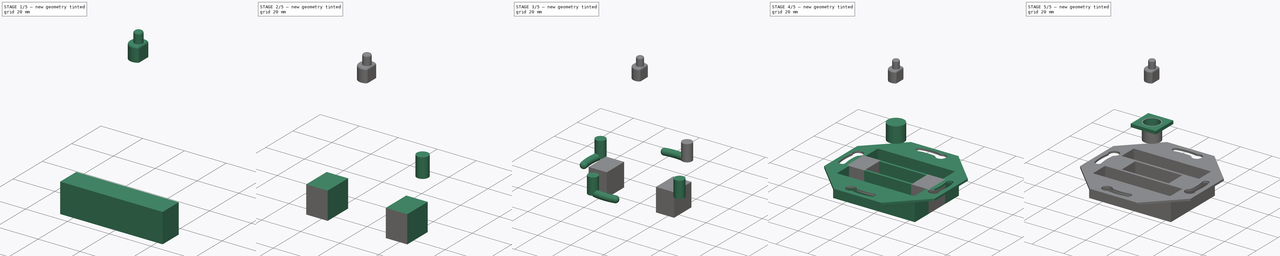
[diagram: build sequence overview — one tinted view per stage of 5, left to right]
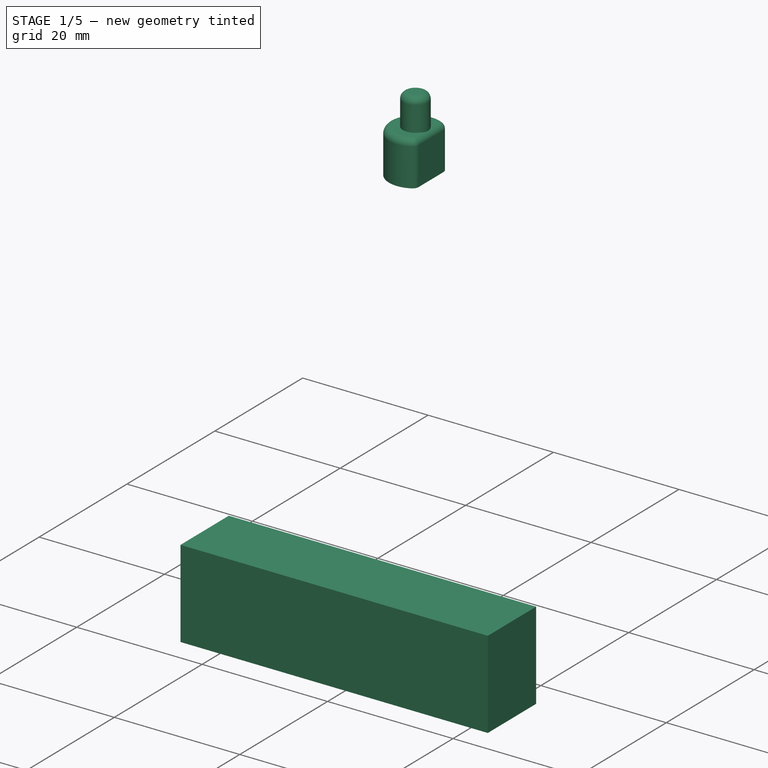
[diagram: stage 1 of 5 — iso view after this stage's code; geometry added in this stage tinted green]
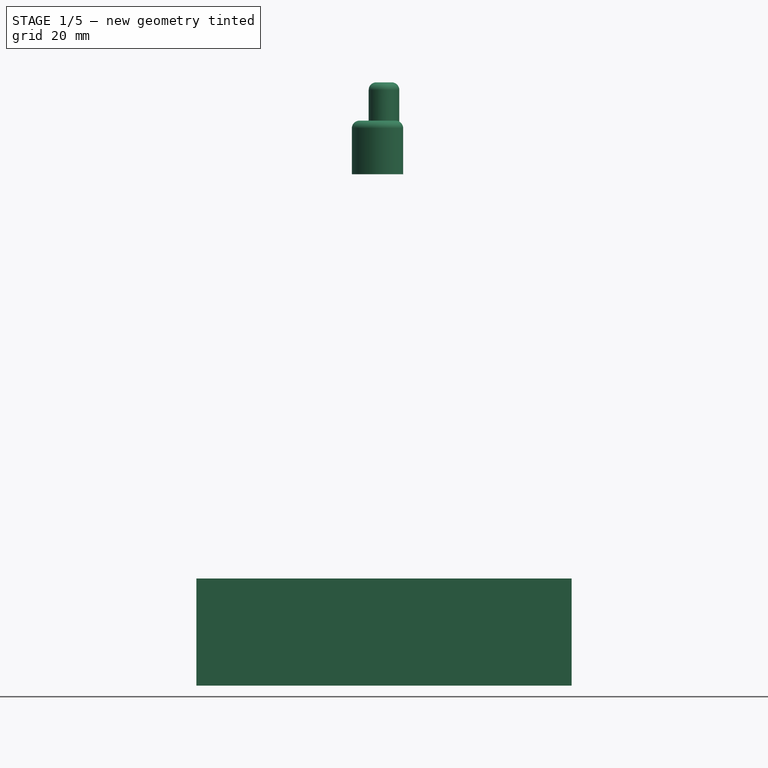
[diagram: stage 1 of 5 — front view after this stage's code; geometry added in this stage tinted green]
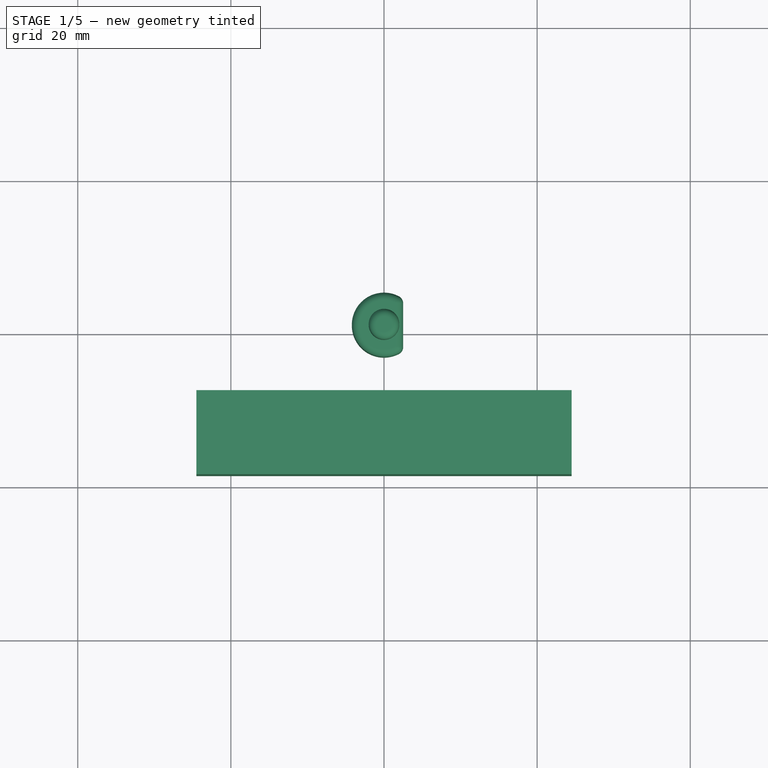
[diagram: stage 1 of 5 — top view after this stage's code; geometry added in this stage tinted green]
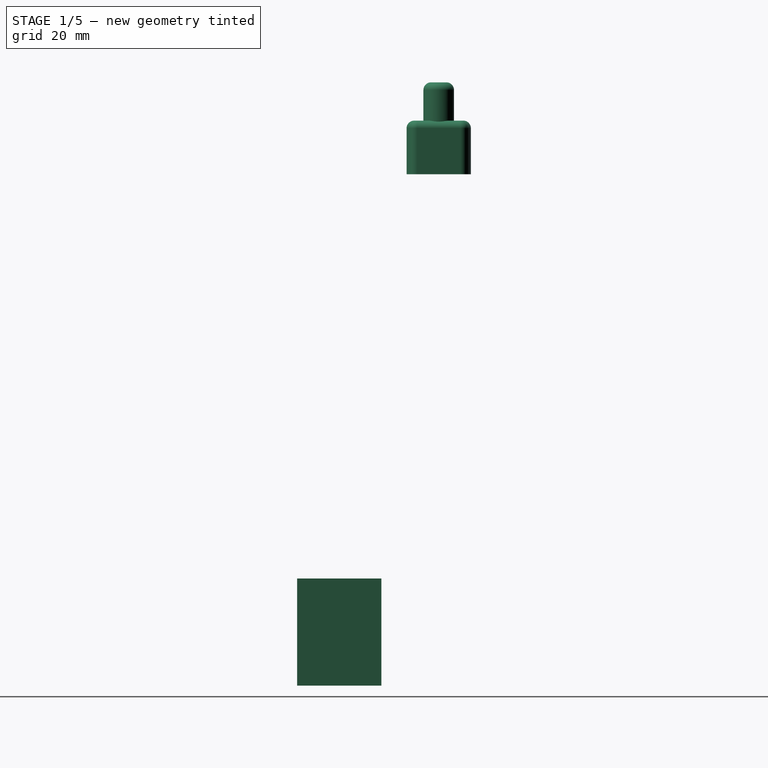
[diagram: stage 1 of 5 — right view after this stage's code; geometry added in this stage tinted green]
FCSTD DOCUMENT  (FreeCAD 0.16R6706 (Git))
Label: HB-RC-3-ENC
License: All rights reserved
LicenseURL: http://en.wikipedia.org/wiki/All_rights_reserved
objects: Part::Cylinder×9, Part::MultiFuse×6, Part::FeaturePython×5, Part::Box×5, Part::Cut×5, Sketcher::SketchObject×2, PartDesign::Pad×2, Part::Fillet×2, Part::Chamfer×2, Part::Torus×1, Part::Feature×1, Part::Thickness×1
note: 43 computed .brp shape members not serialized (recipe doc carries the construction recipe); baked Part::Feature solids carry a one-line shape summary decoded from their .brp

FEATURE [Sketcher::SketchObject] Sketch
  sketch-geometry (8):
    g0: LineSegment StartX=-15 StartY=35 StartZ=0 EndX=15 EndY=35 EndZ=0
    g1: LineSegment StartX=35 StartY=15 StartZ=0 EndX=35 EndY=-15 EndZ=0
    g2: LineSegment StartX=15 StartY=-35 StartZ=0 EndX=-15 EndY=-35 EndZ=0
    g3: LineSegment StartX=-35 StartY=15 StartZ=0 EndX=-35 EndY=-15 EndZ=0
    g4: LineSegment StartX=-35 StartY=15 StartZ=0 EndX=-15 EndY=35 EndZ=0
    g5: LineSegment StartX=15 StartY=35 StartZ=0 EndX=35 EndY=15 EndZ=0
    g6: LineSegment StartX=35 StartY=-15 StartZ=0 EndX=15 EndY=-35 EndZ=0
    g7: LineSegment StartX=-15 StartY=-35 StartZ=0 EndX=-35 EndY=-15 EndZ=0
  constraints (24):
    c: Horizontal(g0)
    c: Vertical(g1)
    c: Horizontal(g2)
    c: Vertical(g3)
    c: Coincident(g4,g3)
    c: Coincident(g4,g0)
    c: Coincident(g5,g0)
    c: Coincident(g5,g1)
    c: Coincident(g6,g1)
    c: Coincident(g6,g2)
    c: Coincident(g7,g2)
    c: Coincident(g7,g3)
    c: Distance(g-1,g3) = 35
    c: Distance(g-1,g1) = 35
    c: Distance(g-1,g0) = 35
    c: Distance(g-1,g2) = 35
    c: DistanceX(g0,g0) = 30
    c: Symmetric(g0,g0,g-2)
    c: DistanceX(g2,g2) = 30
    c: Symmetric(g2,g2,g-2)
    c: DistanceY(g1,g1) = 30
    c: Symmetric(g1,g1,g-1)
    c: DistanceY(g3,g3) = 30
    c: Symmetric(g3,g3,g-1)
FEATURE [PartDesign::Pad] Pad
  Length = 1.2
  Length2 = 100
  Sketch = -> Sketch
  Type = 0
FEATURE [Part::Cylinder] Cylinder007  label="AAA"
  Angle = 360
  Height = 45
  Placement = pos=(-22.5,-13,-4.3) rot=(0,1,0;1.5708rad)
  Radius = 5.5
  expr: Placement.Base.z = -Radius + Pad.Length
  expr: Placement.Base.x = -Height / 2
FEATURE [Part::Box] Box  label="BatFachInnen"
  Height = 14
  Length = 49
  Placement = pos=(-24.5,-18.5,-12.8) rot=(0,0,1;0rad)
  Width = 11
  expr: Placement.Base.z = -Height + Pad.Length
  expr: Placement.Base.y = AAA.Placement.Base.y - Width / 2
  expr: Placement.Base.x = -Length / 2
  expr: Height = AAA.Radius * 2 + 3mm
  expr: Width = AAA.Radius * 2
  expr: Length = AAA.Height + 4mm
FEATURE [Sketcher::SketchObject] Sketch001
  sketch-geometry (2):
    g0: ArcOfCircle CenterX=0 CenterY=0 CenterZ=0 NormalX=0 NormalY=0 NormalZ=1 Radius=3.2 StartAngle=4.22451 EndAngle=8.34186
    g1: LineSegment StartX=-1.5 StartY=2.82666 StartZ=0 EndX=-1.5 EndY=-2.82666 EndZ=0
  constraints (6):
    c: Coincident(g0,g-1)
    c: Coincident(g1,g0)
    c: Coincident(g1,g0)
    c: Vertical(g1)
    c: Radius(g0) = 3.2
    c: Distance(g-1,g1) = 1.5
FEATURE [PartDesign::Pad] Pad001
  Length = 6
  Length2 = 100
  Sketch = -> Sketch001
  Type = 0
FEATURE [Part::Thickness] Thickness
  Faces = -> Pad001 [Face4]
  Intersection = false
  Join = 0
  Mode = 0
  SelfIntersection = false
  Value = 1
FEATURE [Part::Cylinder] Cylinder011  label="Zylinder001"
  Angle = 360
  Height = 6
  Placement = pos=(0,0,-6) rot=(0,0,1;0rad)
  Radius = 2
  expr: Placement.Base.z = -Height
FEATURE [Part::Fillet] Fillet001
  Base = -> Cylinder011
  Edges = 1 edges r=1: [Edge3]
FEATURE [Part::MultiFuse] Fusion006  label="Adapter"
  Placement = pos=(0,0,60) rot=(0,1,0;3.14159rad)
  Shapes = -> [Thickness,Fillet001]
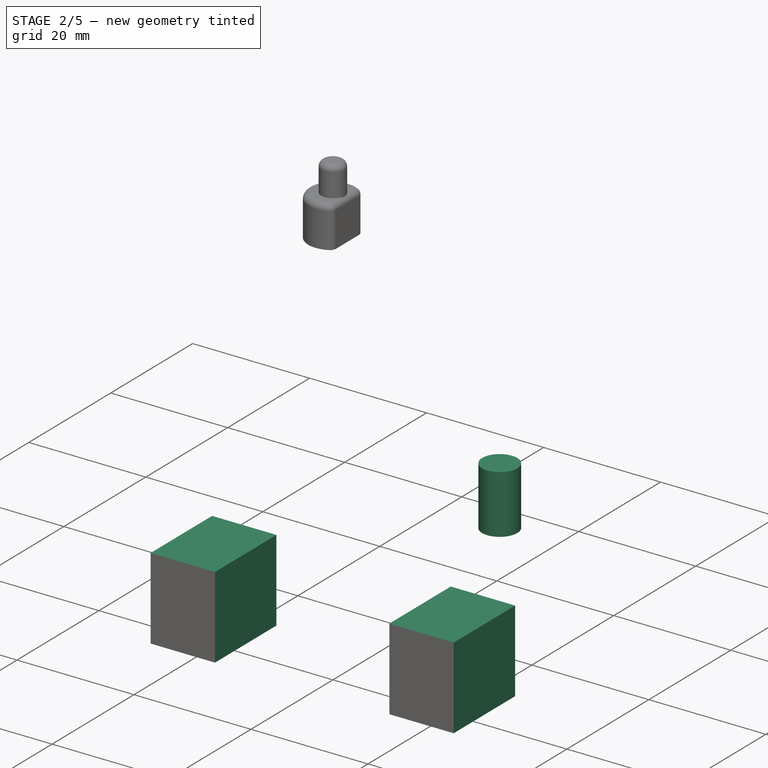
[diagram: stage 2 of 5 — iso view after this stage's code; geometry added in this stage tinted green]
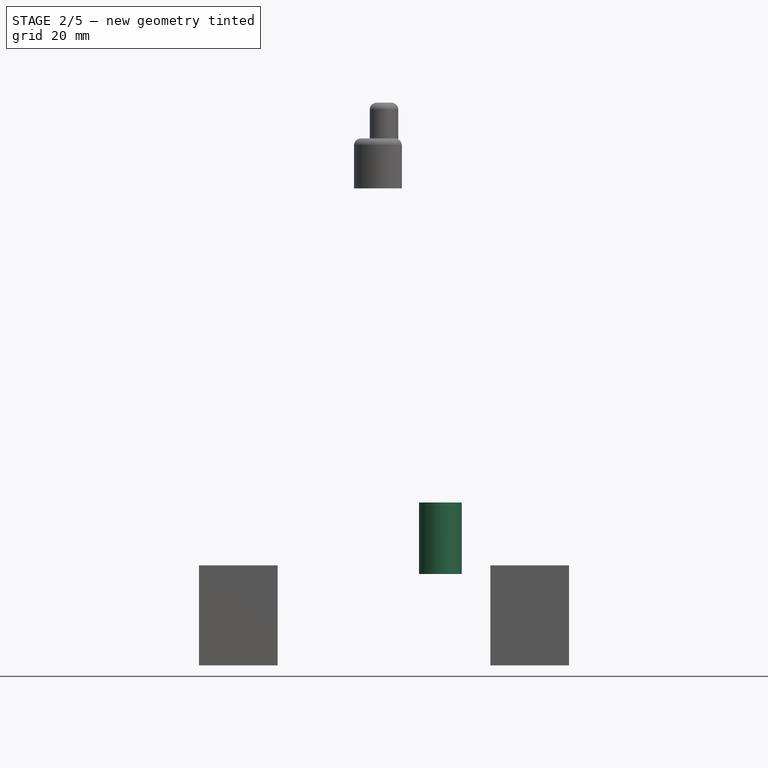
[diagram: stage 2 of 5 — front view after this stage's code; geometry added in this stage tinted green]
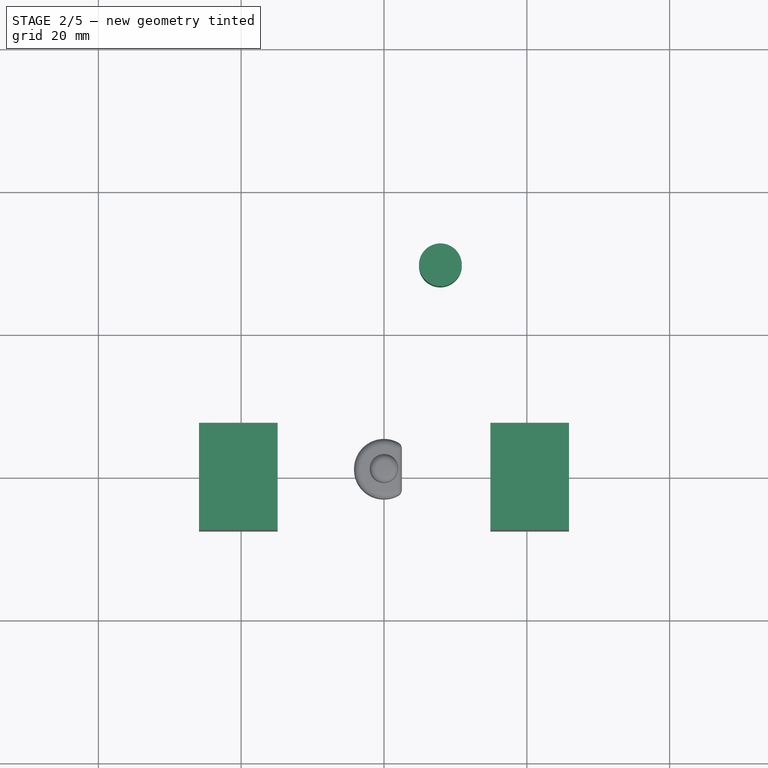
[diagram: stage 2 of 5 — top view after this stage's code; geometry added in this stage tinted green]
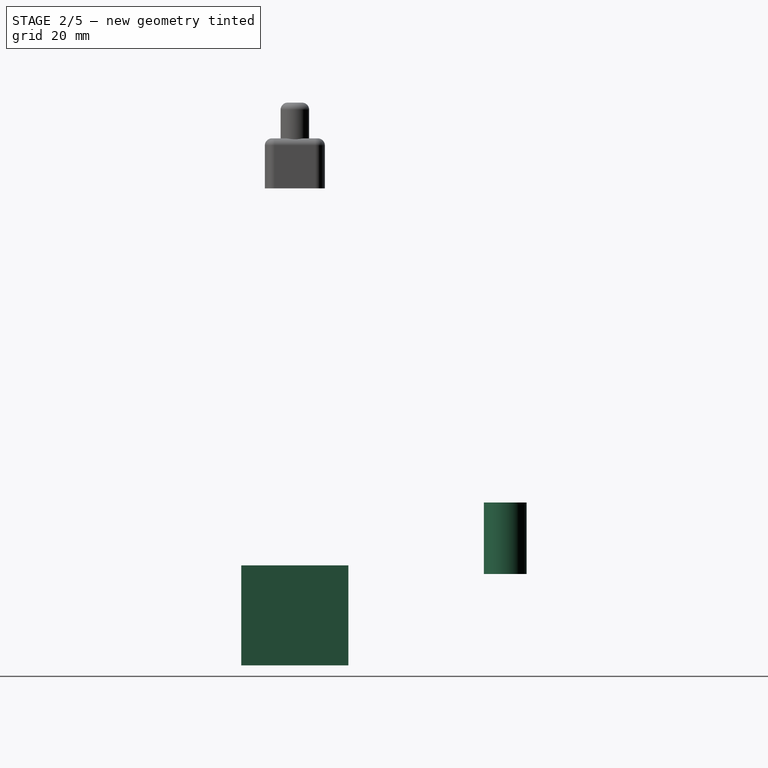
[diagram: stage 2 of 5 — right view after this stage's code; geometry added in this stage tinted green]
FEATURE [Part::Torus] Torus  label="Schlitz"
  Angle1 = -180
  Angle2 = 180
  Angle3 = 30
  Placement = pos=(0,0,0.6) rot=(0,0,-1;0.261799rad)
  Radius1 = 30.5
  Radius2 = 2
  expr: Placement.Base.z = Pad.Length / 2
FEATURE [Part::Cylinder] Cylinder  label="Loch1"
  Angle = 360
  Height = 10
  Placement = pos=(7.89398,29.4607,0) rot=(0,0,1;0rad)
  Radius = 3
  expr: Placement.Base.x = Schlitz.Radius1 * sin(Schlitz.Angle3 / 2)
  expr: Placement.Rotation.Angle = 0
  expr: Radius = Schlitz.Radius2 + 1mm
  expr: Placement.Base.y = Schlitz.Radius1 * cos(Schlitz.Angle3 / 2)
FEATURE [Part::Box] Box001  label="BatFachAussen"
  Height = 14
  Length = 51.8
  Placement = pos=(-25.9,-19.9,-12.8) rot=(0,0,1;0rad)
  Width = 13.8
  expr: Placement.Base.y = BatFachInnen.Placement.Base.y - 1.4mm
  expr: Placement.Base.z = -Height + Pad.Length
  expr: Placement.Base.x = -Length / 2
  expr: Height = BatFachInnen.Height
  expr: Width = BatFachInnen.Width + 2.8mm
  expr: Length = BatFachInnen.Length + 2.8mm
FEATURE [Part::Cut] Cut001  label="BatFach"
  Base = -> Box001
  Tool = -> Box
FEATURE [Part::FeaturePython] Array  label="BatFaecher"  # Draft array (typed FeaturePython)
  Angle = 360
  ArrayType = 0
  Axis = (0,0,1)
  Base = -> Cut001
  Center = (0,0,0)
  Fuse = false
  IntervalAxis = (0,0,0)
  IntervalX = (1,0,0)
  IntervalY = (0,26,0)
  IntervalZ = (0,0,0)
  NumberPolar = 1
  NumberX = 1
  NumberY = 2
  NumberZ = 1
  expr: IntervalY.y = BatFachAussen.Placement.Base.y * -2 - BatFachAussen.Width
FEATURE [Part::Box] Box003  label="Verbinder"
  Height = 14
  Length = 11
  Placement = pos=(-25.9,-7.5,-12.8) rot=(0,0,1;0rad)
  Width = 15
  expr: Placement.Base.z = BatFachInnen.Placement.Base.z
  expr: Placement.Base.y = -Width / 2
  expr: Placement.Base.x = BatFachAussen.Placement.Base.x
  expr: Height = BatFachInnen.Height
  expr: Width = BatFaecher.IntervalY.y * 1mm - BatFachInnen.Width
  expr: Length = BatFachInnen.Height - 3mm
FEATURE [Part::FeaturePython] Array001  label="Platinenhalter"  # Draft array (typed FeaturePython)
  Angle = 360
  ArrayType = 0
  Axis = (0,0,1)
  Base = -> Box003
  Center = (0,0,0)
  Fuse = false
  IntervalAxis = (0,0,0)
  IntervalX = (40.8,0,0)
  IntervalY = (0,0,0)
  IntervalZ = (0,0,0)
  NumberPolar = 1
  NumberX = 2
  NumberY = 1
  NumberZ = 1
  expr: IntervalX.x = BatFachAussen.Length - Verbinder.Length
  expr: IntervalY.y = 0
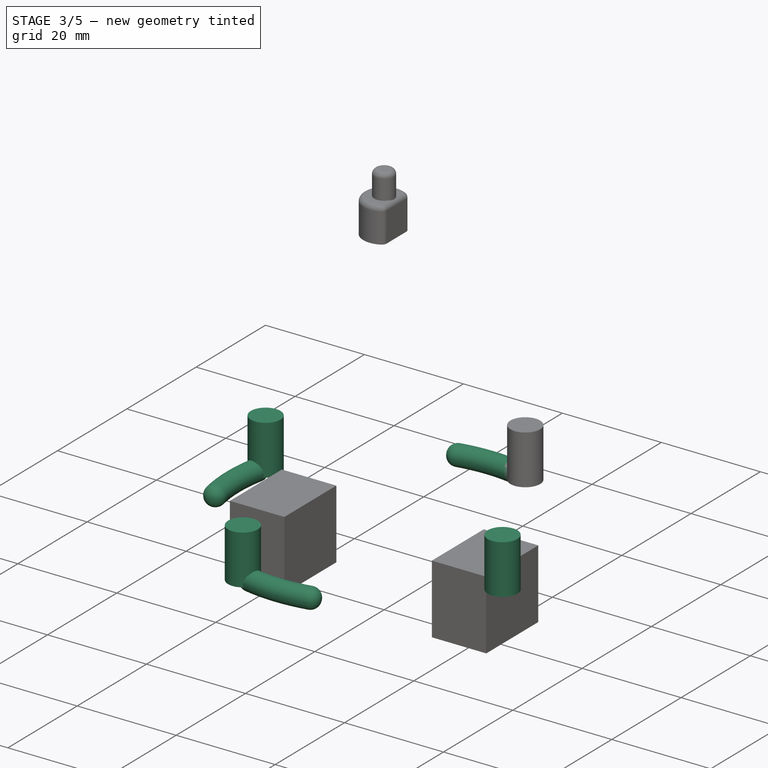
[diagram: stage 3 of 5 — iso view after this stage's code; geometry added in this stage tinted green]
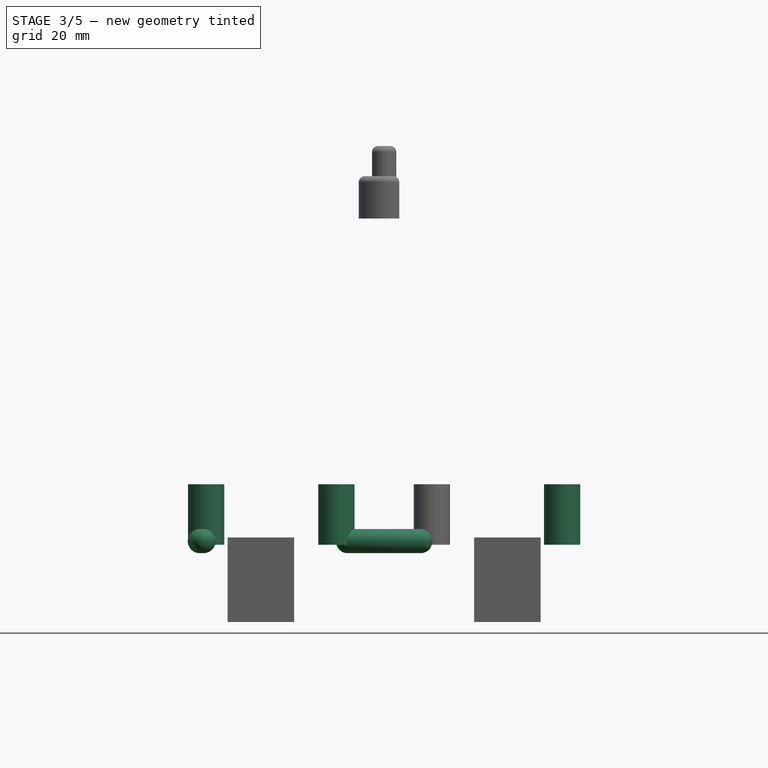
[diagram: stage 3 of 5 — front view after this stage's code; geometry added in this stage tinted green]
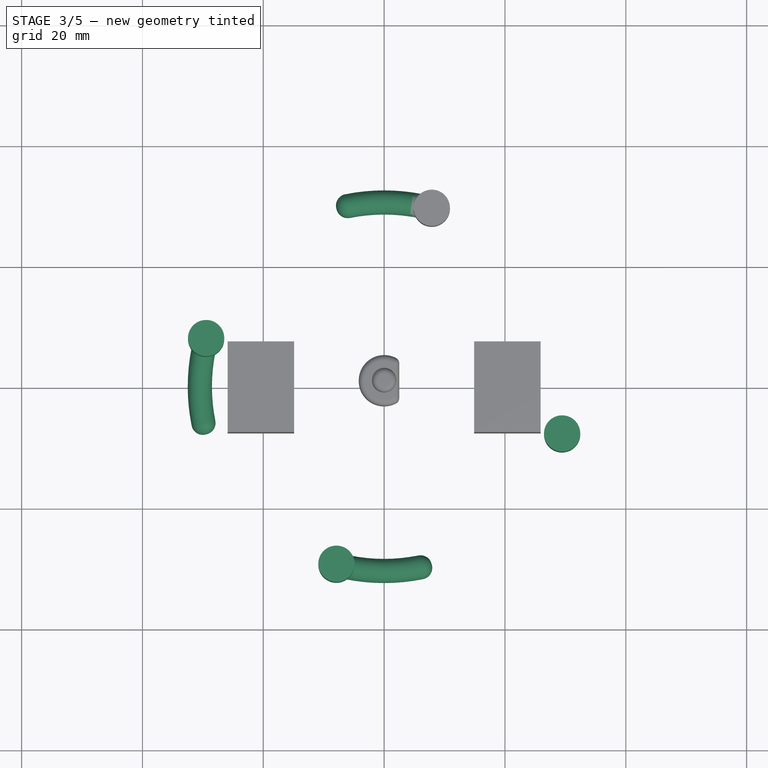
[diagram: stage 3 of 5 — top view after this stage's code; geometry added in this stage tinted green]
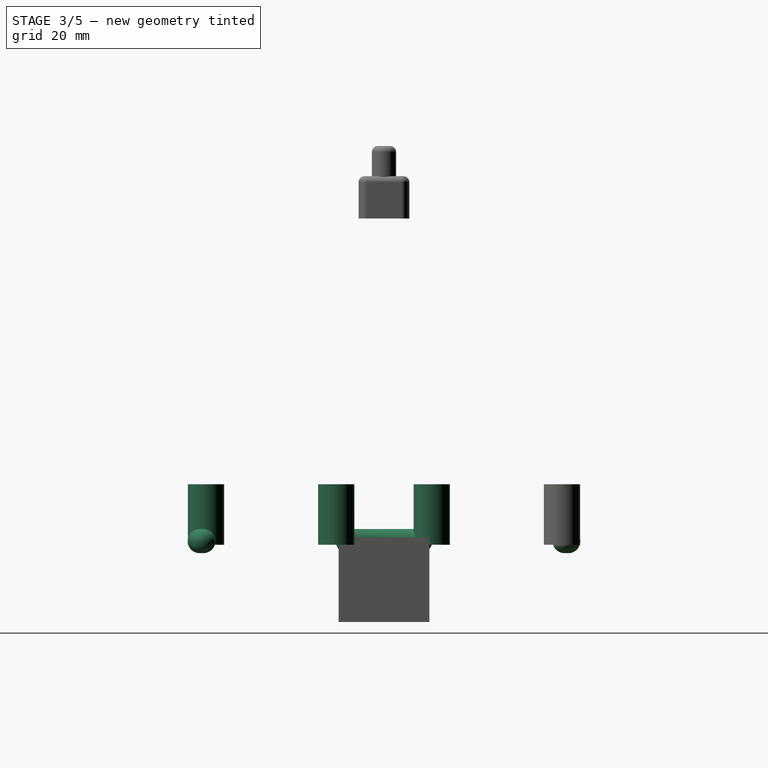
[diagram: stage 3 of 5 — right view after this stage's code; geometry added in this stage tinted green]
FEATURE [Part::Fillet] Fillet
  Base = -> Torus
  Edges = 2 edges r=1.9: [Edge2,Edge3]
FEATURE [Part::FeaturePython] Clone  label="Clone of Fillet"  # Draft clone (typed FeaturePython)
  Objects = -> [Fillet]
  Placement = pos=(0,0,0) rot=(0,0,1;1.5708rad)
  Scale = (1,1,1)
FEATURE [Part::FeaturePython] Clone001  label="Clone of Fillet001"  # Draft clone (typed FeaturePython)
  Objects = -> [Fillet]
  Placement = pos=(0,0,0) rot=(0,0,1;3.14159rad)
  Scale = (1,1,1)
FEATURE [Part::FeaturePython] Clone002  label="Clone of Fillet002"  # Draft clone (typed FeaturePython)
  Objects = -> [Fillet]
  Placement = pos=(0,0,0) rot=(0,0,-1;1.5708rad)
  Scale = (1,1,1)
FEATURE [Part::Cylinder] Cylinder004  label="Loch2"
  Angle = 360
  Height = 10
  Placement = pos=(29.4607,-7.89398,0) rot=(0,0,1;0rad)
  Radius = 3
  expr: Placement.Base.y = -Schlitz.Radius1 * sin(Schlitz.Angle3 / 2)
  expr: Placement.Base.x = Schlitz.Radius1 * cos(Schlitz.Angle3 / 2)
  expr: Radius = Loch1.Radius
FEATURE [Part::Cylinder] Cylinder005  label="Loch3"
  Angle = 360
  Height = 10
  Placement = pos=(-7.89398,-29.4607,0) rot=(0,0,1;0rad)
  Radius = 3
  expr: Placement.Base.y = -Schlitz.Radius1 * cos(Schlitz.Angle3 / 2)
  expr: Placement.Base.x = -Schlitz.Radius1 * sin(Schlitz.Angle3 / 2)
  expr: Radius = Loch1.Radius
FEATURE [Part::Cylinder] Cylinder006  label="Loch4"
  Angle = 360
  Height = 10
  Placement = pos=(-29.4607,7.89398,0) rot=(0,0,1;0rad)
  Radius = 3
  expr: Placement.Base.y = Schlitz.Radius1 * sin(Schlitz.Angle3 / 2)
  expr: Placement.Base.x = -Schlitz.Radius1 * cos(Schlitz.Angle3 / 2)
  expr: Radius = Loch1.Radius
FEATURE [Part::MultiFuse] Fusion002  label="Loecher"
  Shapes = -> [Cylinder,Cylinder005,Cylinder006,Cylinder004]
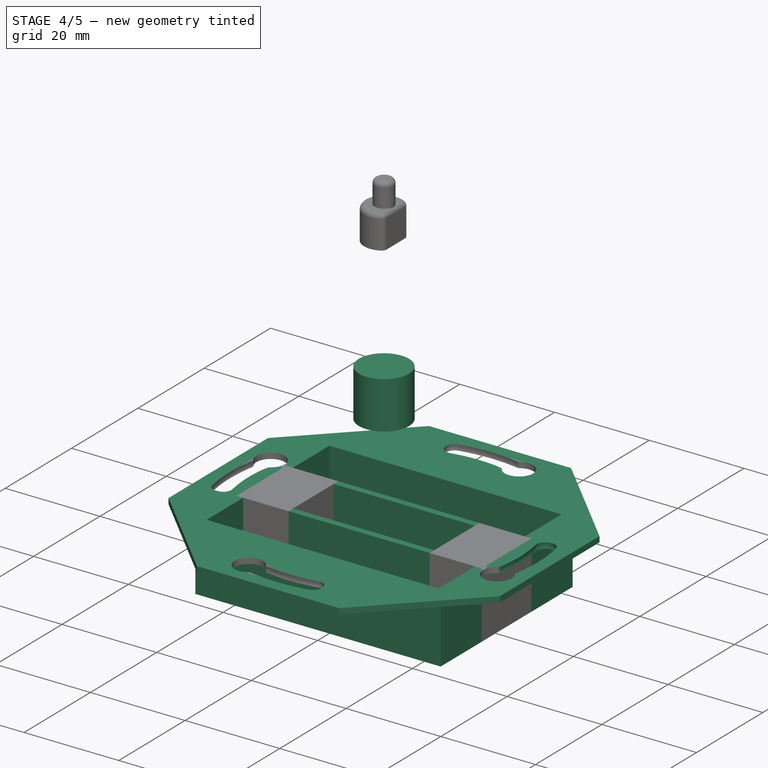
[diagram: stage 4 of 5 — iso view after this stage's code; geometry added in this stage tinted green]
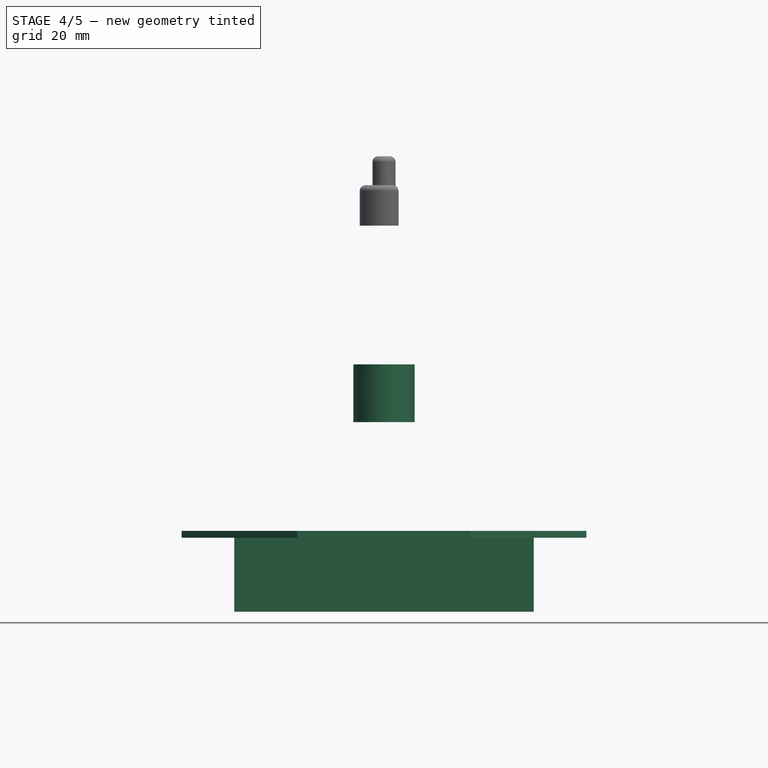
[diagram: stage 4 of 5 — front view after this stage's code; geometry added in this stage tinted green]
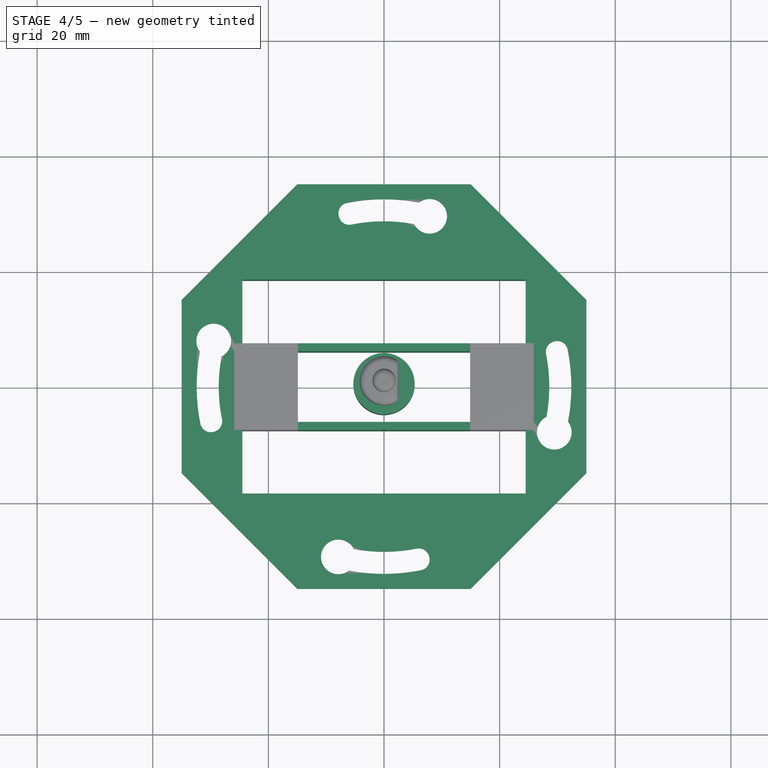
[diagram: stage 4 of 5 — top view after this stage's code; geometry added in this stage tinted green]
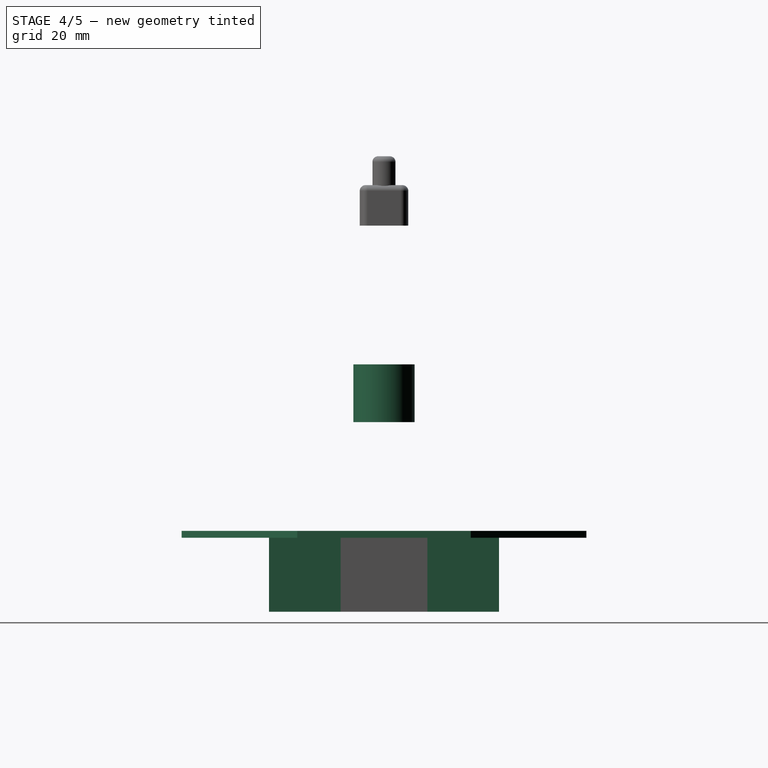
[diagram: stage 4 of 5 — right view after this stage's code; geometry added in this stage tinted green]
FEATURE [Part::MultiFuse] Fusion  label="Schlitze"
  Shapes = -> [Fillet,Clone,Clone001,Clone002]
FEATURE [Part::Box] Box002  label="AusschnittPad"
  Height = 10
  Length = 49
  Placement = pos=(-24.5,-18.5,0) rot=(0,0,1;0rad)
  Width = 37
  expr: Placement.Base.y = -Width / 2
  expr: Width = (AAA.Placement.Base.y - AAA.Radius) * -2
  expr: Placement.Base.x = -Length / 2
  expr: Length = BatFachInnen.Length
FEATURE [Part::Cut] Cut
  Base = -> Pad
  Tool = -> Box002
FEATURE [Part::MultiFuse] Fusion003
  Shapes = -> [Fusion002,Fusion]
FEATURE [Part::Cut] Cut002  label="Base"
  Base = -> Cut
  Tool = -> Fusion003
FEATURE [Part::Feature] Compound  label="Board"
  Placement = pos=(-115,90,-14.6) rot=(0,0,1;0rad)
  shape: bbox 50.2 x 40.2 x 4.3 mm, 394 faces, 48 solids (baked)
  expr: Placement.Base.z = -BatFachInnen.Height - 0.6mm
FEATURE [Part::Cylinder] Cylinder008  label="Schraube"
  Angle = 360
  Height = 10
  Placement = pos=(0,0,20) rot=(0,0,1;0rad)
  Radius = 5.3
  expr: Placement.Base.z = 20
  expr: Radius = 5.3
FEATURE [Part::MultiFuse] Fusion005  label="Case"
  Shapes = -> [Array,Cut002,Array001]
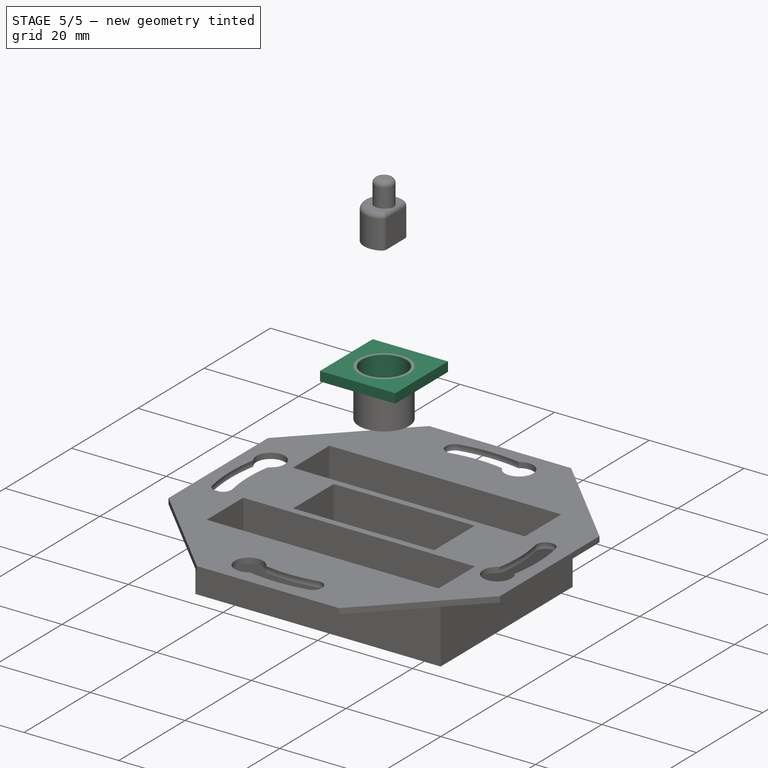
[diagram: stage 5 of 5 — iso view after this stage's code; geometry added in this stage tinted green]
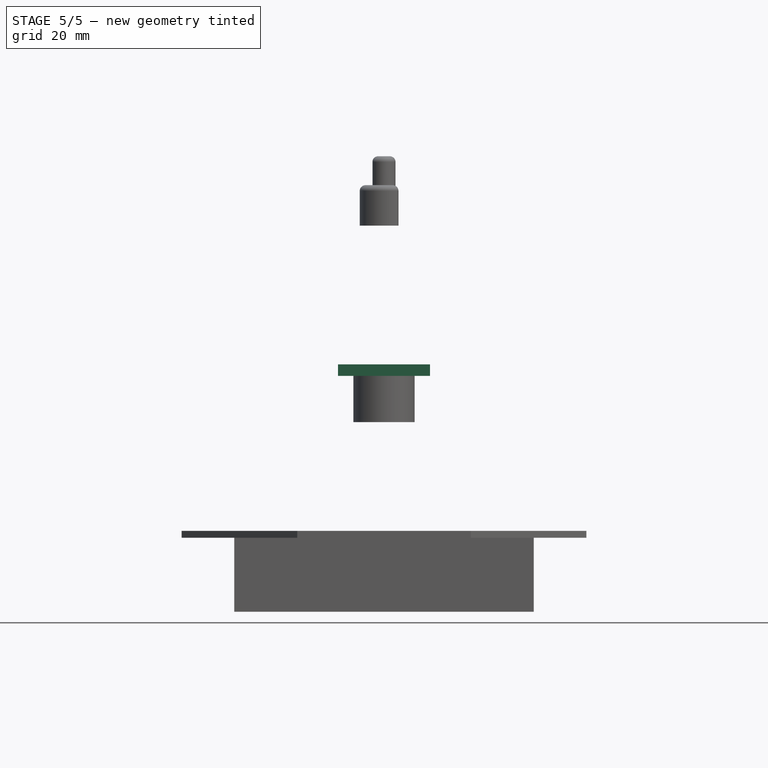
[diagram: stage 5 of 5 — front view after this stage's code; geometry added in this stage tinted green]
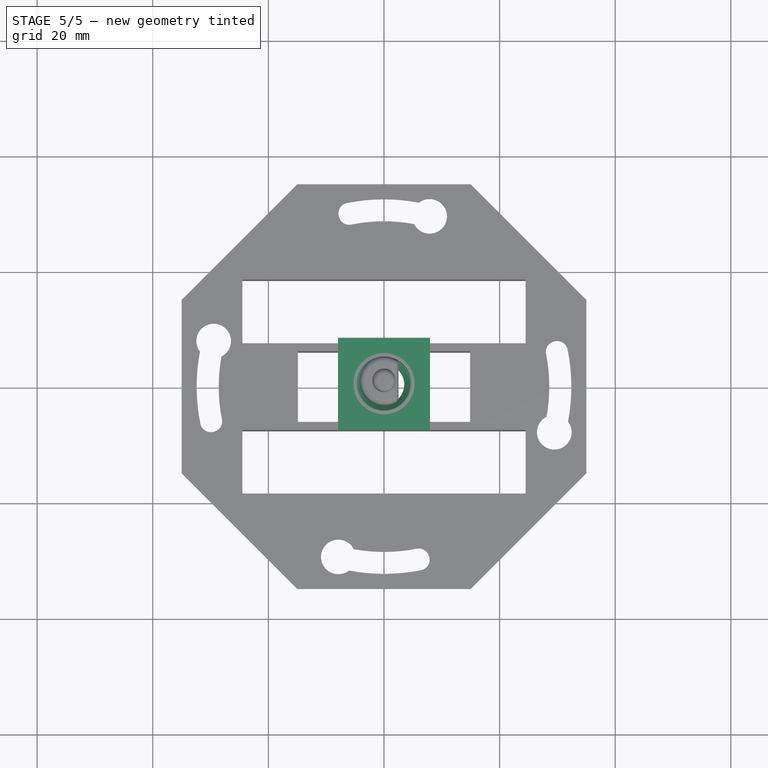
[diagram: stage 5 of 5 — top view after this stage's code; geometry added in this stage tinted green]
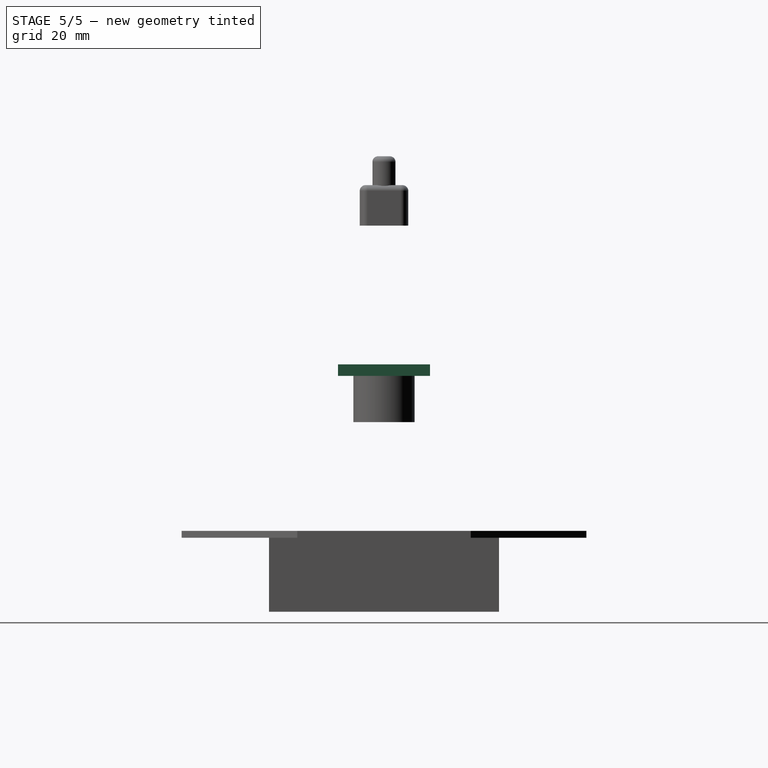
[diagram: stage 5 of 5 — right view after this stage's code; geometry added in this stage tinted green]
FEATURE [Part::Box] Box004  label="Würfel"
  Height = 2
  Length = 15.9
  Placement = pos=(-7.95,-7.95,28) rot=(0,0,1;0rad)
  Width = 15.9
  expr: Width = Schraube.Radius * 3
  expr: Length = Schraube.Radius * 3
  expr: Placement.Base.z = Schraube.Placement.Base.z + Schraube.Height - Height
  expr: Placement.Base.y = Schraube.Placement.Base.y - Width / 2
  expr: Placement.Base.x = Schraube.Placement.Base.x - Length / 2
FEATURE [Part::Cylinder] Cylinder009  label="Zylinder"
  Angle = 360
  Height = 10
  Placement = pos=(0,0,20) rot=(0,0,1;0rad)
  Radius = 3.5
  expr: Placement.Base.z = Schraube.Placement.Base.z
  expr: Placement.Base.y = Schraube.Placement.Base.y
  expr: Placement.Base.x = Schraube.Placement.Base.x
FEATURE [Part::MultiFuse] Fusion004
  Shapes = -> [Cylinder008,Box004]
FEATURE [Part::Cut] Cut003
  Base = -> Fusion004
  Tool = -> Cylinder009
FEATURE [Part::Cylinder] Cylinder010  label="LochSchraubeOben"
  Angle = 360
  Height = 10
  Placement = pos=(0,0,24) rot=(0,0,1;0rad)
  Radius = 4.7
  expr: Placement.Base.z = Schraube.Placement.Base.z + Schraube.Height - 6mm
  expr: Placement.Base.y = Schraube.Placement.Base.y
  expr: Placement.Base.x = Schraube.Placement.Base.x
FEATURE [Part::Cut] Cut004
  Base = -> Cut003
  Tool = -> Cylinder010
FEATURE [Part::Chamfer] Chamfer
  Base = -> Cut004
  Edges = 1 edges r=1: [Edge6]
FEATURE [Part::Chamfer] Chamfer001  label="Bolt"
  Base = -> Chamfer
  Edges = 1 edges r=1: [Edge3]
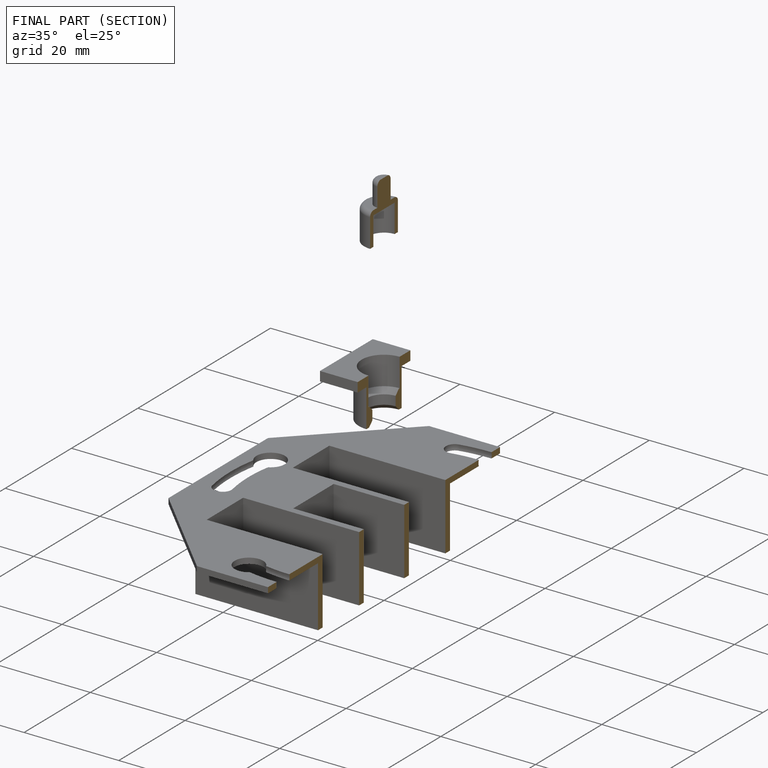
[diagram: finished part — half-section view (interior)]
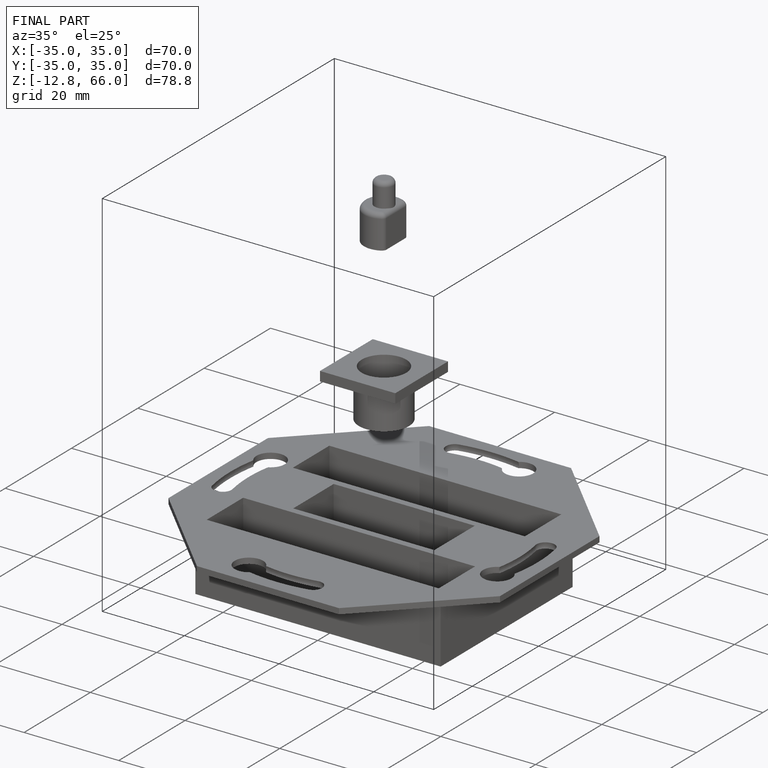
[diagram: finished part — iso view with bounding-box wireframe]
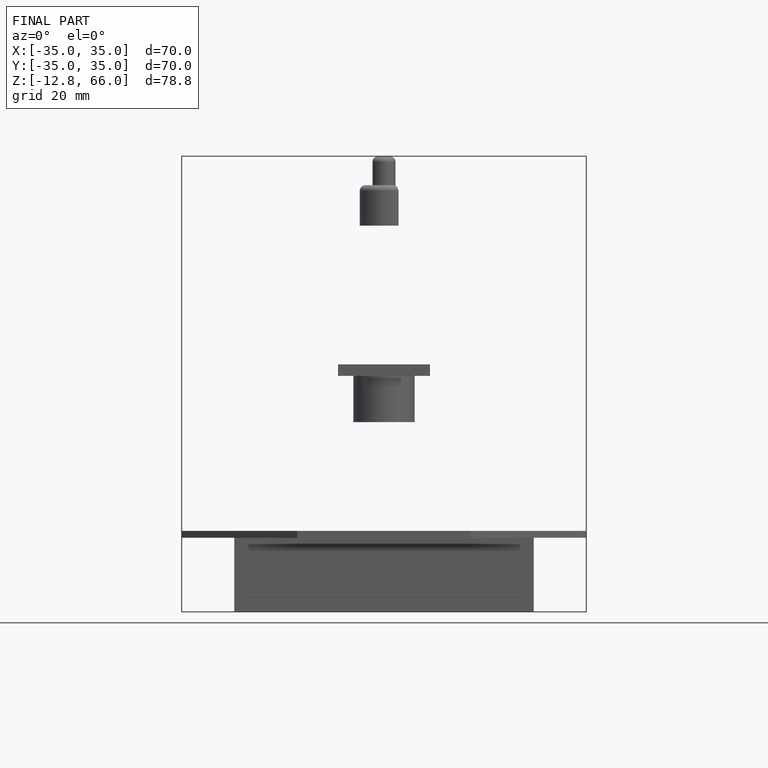
[diagram: finished part — front view with bounding-box wireframe]
